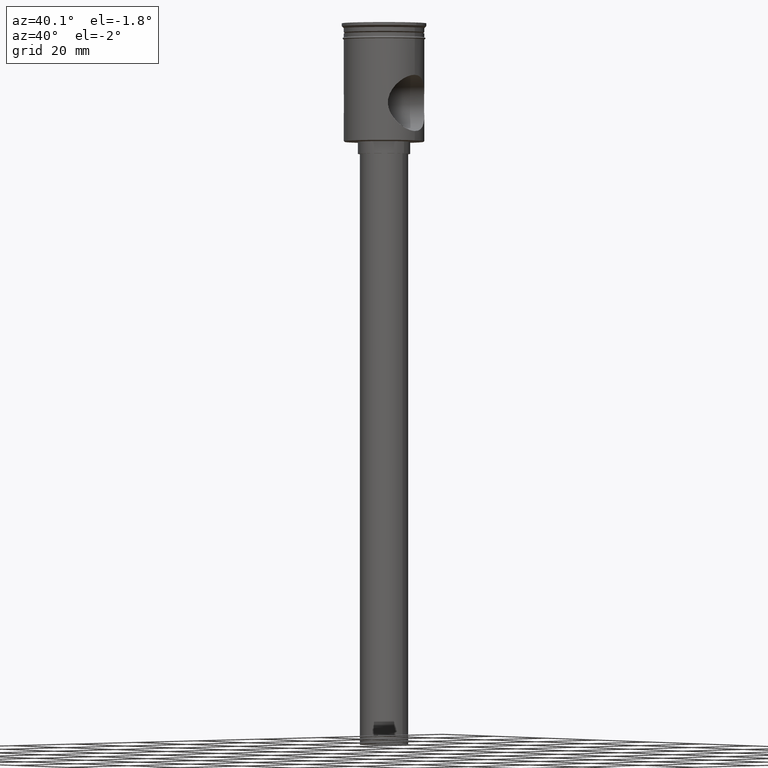
[diagram: clean part render]
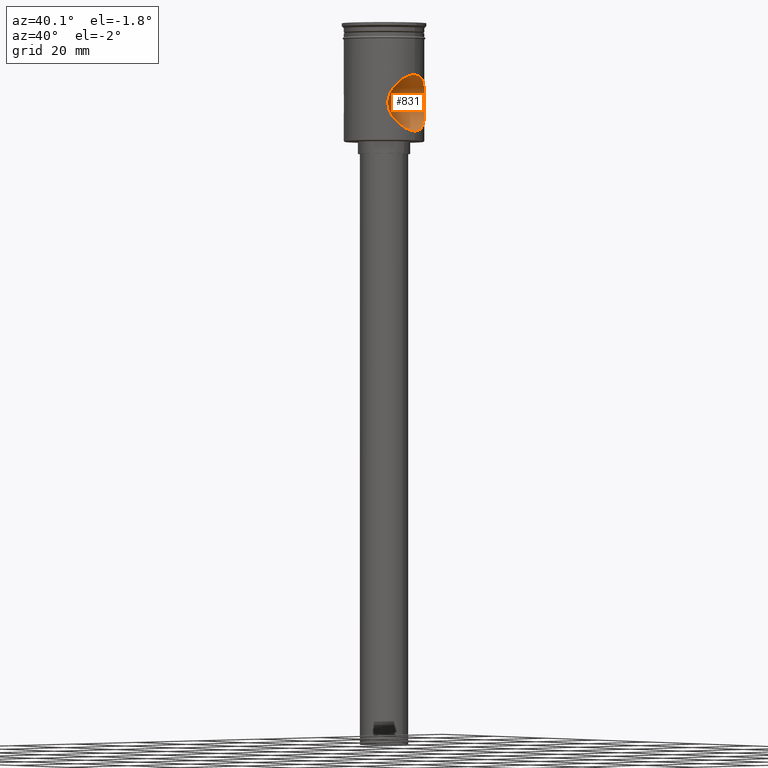
[diagram: same view with one face highlighted and labeled with its STEP entity id]
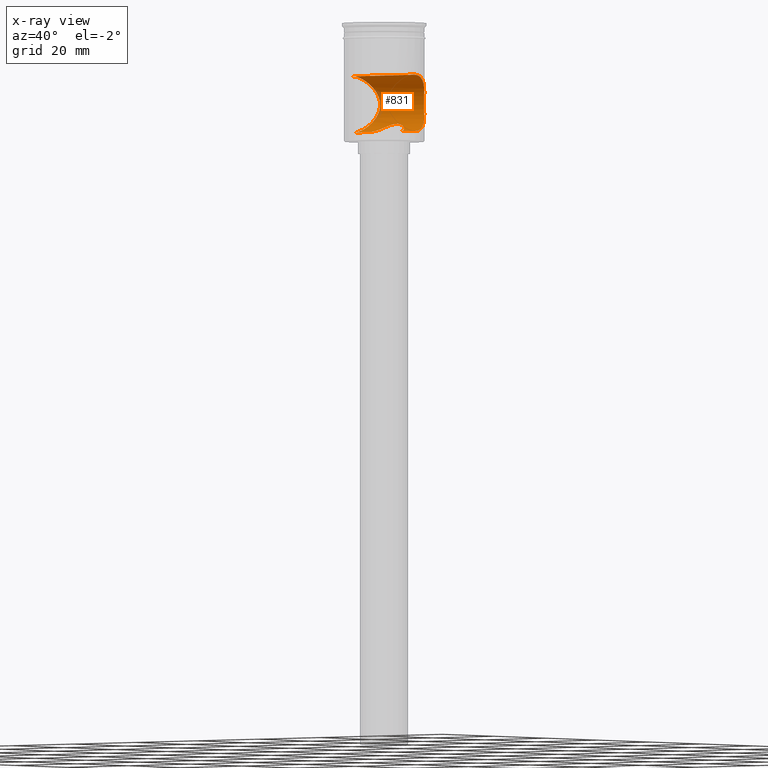
[diagram: x-ray of the same camera — body ghosted, the highlighted face saturated]
A machine part, auxiliary view. The second image highlights one B-rep face of the part: STEP entity #831.
The next image is the same camera in x-ray: the body ghosted, the highlighted face saturated — about 4% of this face is hidden behind the body in this view.
In plain terms, the highlighted cylindrical surface (edge-blend (fillet) strip) has radius 7 mm, axis along (1, -0, -0).
Its self-contained STEP definition (entity closure, byte-faithful):
#1 = CARTESIAN_POINT ( 'NONE',  ( 9.735967975428478027, 2.325336189795355502, -13.38128717480536345 ) ) ;
#23 = CARTESIAN_POINT ( 'NONE',  ( -7.500597748671954612, 6.614342876288898054, -17.69704926583546722 ) ) ;
#29 = CARTESIAN_POINT ( 'NONE',  ( 1.337335298765798930, 4.829642785058293697, -25.06789870844718138 ) ) ;
#37 = EDGE_CURVE ( 'NONE', #698, #774, #915, .T. ) ;
#48 = VERTEX_POINT ( 'NONE', #1465 ) ;
#53 = ORIENTED_EDGE ( 'NONE', *, *, #1256, .T. ) ;
#58 = CARTESIAN_POINT ( 'NONE',  ( 7.201179731105407100, 6.938600208746065867, -20.95536877560809330 ) ) ;
#70 = CARTESIAN_POINT ( 'NONE',  ( 9.493823586986472662, 3.171854784083770085, -26.25704949909892250 ) ) ;
#73 = CARTESIAN_POINT ( 'NONE',  ( -10.50000000000000000, 0.000000000000000000, -27.00000000000000355 ) ) ;
#74 = B_SPLINE_CURVE_WITH_KNOTS ( 'NONE', 3,
 ( #1354, #180, #318, #187, #667, #70, #1045, #660, #793, #191, #1132, #685, #559, #1493, #1124, #432, #309, #441, #58, #1386, #1470, #1239, #891, #351, #327, #1066, #819, #945, #581, #1521, #930, #335, #955, #233, #1527, #1304, #342, #964, #719, #1, #219, #1407, #1418, #588, #1060, #1423 ),
 .UNSPECIFIED., .F., .F.,
 ( 4, 2, 2, 2, 2, 2, 2, 2, 2, 2, 2, 2, 2, 2, 2, 2, 2, 2, 2, 2, 2, 2, 4 ),
 ( 0.000000000000000000, 0.001421073207666945183, 0.002842146415333890366, 0.004263219623000837066, 0.005684292830667782466, 0.007105366038334726998, 0.008526439246001672398, 0.009236975849835149868, 0.009947512453668627339, 0.01065804905750210654, 0.01136858566133558401, 0.01207912226516906322, 0.01278965886900253895, 0.01421073207666949390, 0.01492126868050296790, 0.01563180528433644190, 0.01705287849200338296, 0.01847395169967032749, 0.01918448830350380149, 0.01989502490733727202, 0.02131609811500421309, 0.02202663471883768362, 0.02273717132267115415 ),
 .UNSPECIFIED. ) ;
#92 = CARTESIAN_POINT ( 'NONE',  ( -9.832878540591766026, 1.879722866531852610, -13.24054240779419089 ) ) ;
#107 = CARTESIAN_POINT ( 'NONE',  ( -5.000000000000000888, 0.000000000000000000, -27.00000000000001066 ) ) ;
#136 = CARTESIAN_POINT ( 'NONE',  ( -8.056358060451357161, 5.926078000082595665, -23.73242365119358155 ) ) ;
#147 = CARTESIAN_POINT ( 'NONE',  ( -2.532890282785345448, 4.322635034373780272, -25.51029251272041165 ) ) ;
#156 = CARTESIAN_POINT ( 'NONE',  ( -0.1754869620673724095, 4.999867480858278590, -24.89911473726898095 ) ) ;
#165 = CARTESIAN_POINT ( 'NONE',  ( -1.179760909527910684, 4.861708977790192066, -25.03647217495750610 ) ) ;
#180 = CARTESIAN_POINT ( 'NONE',  ( 9.999999999999994671, 0.4814323775651360160, -27.00000000000000711 ) ) ;
#187 = CARTESIAN_POINT ( 'NONE',  ( 9.834047061028444503, 1.872933838790287631, -26.76115115372198616 ) ) ;
#191 = CARTESIAN_POINT ( 'NONE',  ( 8.500359578522527215, 5.279417043634754947, -24.61763755135371312 ) ) ;
#201 = ORIENTED_EDGE ( 'NONE', *, *, #1226, .F. ) ;
#205 = CARTESIAN_POINT ( 'NONE',  ( -9.736384942666980180, 2.323699784143521185, -13.38067151163704871 ) ) ;
#216 = CARTESIAN_POINT ( 'NONE',  ( -7.381411116935110428, 6.747102913955162151, -21.87877048370861743 ) ) ;
#219 = CARTESIAN_POINT ( 'NONE',  ( 9.832512437962645180, 1.881659858244550509, -13.24107387809922898 ) ) ;
#223 = ORIENTED_EDGE ( 'NONE', *, *, #1263, .T. ) ;
#233 = CARTESIAN_POINT ( 'NONE',  ( 8.857763224790600631, 4.655166966848104160, -14.75332674821394185 ) ) ;
#238 = CARTESIAN_POINT ( 'NONE',  ( -7.141989287018506438, 6.999427809131203659, -20.49012689816927946 ) ) ;
#245 = CARTESIAN_POINT ( 'NONE',  ( -9.826638545464753349, 1.868062541291059642, -26.75021854738501759 ) ) ;
#270 = VECTOR ( 'NONE', #1395, 1000.000000000000000 ) ;
#278 = CARTESIAN_POINT ( 'NONE',  ( 1.650992066523039759, 4.730545921691764022, -25.16233632639476525 ) ) ;
#284 = CARTESIAN_POINT ( 'NONE',  ( 4.965285058292300491, 0.6793982586713438465, -26.97507591100514190 ) ) ;
#290 = CARTESIAN_POINT ( 'NONE',  ( 4.532214772625207111, 2.118082564557161707, -26.67373434947571198 ) ) ;
#296 = LINE ( 'NONE', #1484, #530 ) ;
#309 = CARTESIAN_POINT ( 'NONE',  ( 7.325106434378655607, 6.807865243658028476, -21.64544578927129237 ) ) ;
#310 = VERTEX_POINT ( 'NONE', #895 ) ;
#312 = CARTESIAN_POINT ( 'NONE',  ( -5.000000000000000888, 0.000000000000000000, -27.00000000000001066 ) ) ;
#316 = VECTOR ( 'NONE', #1022, 1000.000000000000000 ) ;
#318 = CARTESIAN_POINT ( 'NONE',  ( 9.965446655919850016, 0.9519641332654187327, -26.95088558220736630 ) ) ;
#327 = CARTESIAN_POINT ( 'NONE',  ( 7.234464554488559962, 6.904114004842417884, -18.82145945963317857 ) ) ;
#335 = CARTESIAN_POINT ( 'NONE',  ( 8.316470757484857756, 5.561257273121390732, -15.72607428983809008 ) ) ;
#339 = CARTESIAN_POINT ( 'NONE',  ( 3.292944377375058629, 3.775732323944060109, -25.90002296354260736 ) ) ;
#341 = CARTESIAN_POINT ( 'NONE',  ( -3.747349970914688022, 3.325110483998860555, -26.16520927218463299 ) ) ;
#342 = CARTESIAN_POINT ( 'NONE',  ( 9.343068346694408888, 3.570972421456893642, -13.97506645596566877 ) ) ;
#351 = CARTESIAN_POINT ( 'NONE',  ( 7.199668910925416832, 6.940164191266630311, -19.05657392165621289 ) ) ;
#356 = CARTESIAN_POINT ( 'NONE',  ( -9.675488818793542833, 2.536388918100093370, -26.52836702033825489 ) ) ;
#379 = CARTESIAN_POINT ( 'NONE',  ( 0.6761335185190037178, 4.965557229327413502, -24.93480376029487644 ) ) ;
#417 = CARTESIAN_POINT ( 'NONE',  ( -9.932287513067288742, 1.185065133237715562, -13.09699146176595974 ) ) ;
#432 = CARTESIAN_POINT ( 'NONE',  ( 7.379165411094851912, 6.749558967525724817, -21.87002777218119931 ) ) ;
#438 = CARTESIAN_POINT ( 'NONE',  ( -9.957864273581446213, 0.9472565907286251141, -13.06030547907275796 ) ) ;
#441 = CARTESIAN_POINT ( 'NONE',  ( 7.236111701560244747, 6.902383710959966834, -21.18811620976742915 ) ) ;
#455 = CARTESIAN_POINT ( 'NONE',  ( -9.991596185262174856, 0.4736682493084680701, -13.01198930438258117 ) ) ;
#456 = VERTEX_POINT ( 'NONE', #903 ) ;
#461 = CARTESIAN_POINT ( 'NONE',  ( -8.503943671969903306, 5.273689396165736731, -24.62422230267287304 ) ) ;
#465 = CARTESIAN_POINT ( 'NONE',  ( -1.809467163200384254, 4.663868933387907312, -25.22066088895259739 ) ) ;
#467 = CARTESIAN_POINT ( 'NONE',  ( -7.569330506494653221, 6.535933251526299337, -17.48356472559870411 ) ) ;
#470 = CARTESIAN_POINT ( 'NONE',  ( -4.725420519943790865, 1.666627172151766034, -26.80593608603389555 ) ) ;
#476 = AXIS2_PLACEMENT_3D ( 'NONE', #1149, #1505, #1259 ) ;
#495 = CARTESIAN_POINT ( 'NONE',  ( -9.999999999999996447, 0.000000000000000000, -27.00000000000000355 ) ) ;
#504 = CARTESIAN_POINT ( 'NONE',  ( -9.999999999999996447, 0.000000000000000000, -27.00000000000000355 ) ) ;
#520 = CARTESIAN_POINT ( 'NONE',  ( -3.059068203738755543, 3.967720825599827528, -25.77110809691168214 ) ) ;
#522 = CARTESIAN_POINT ( 'NONE',  ( -1.657180693842158492, 4.720270986420919357, -25.16948851465703640 ) ) ;
#527 = CARTESIAN_POINT ( 'NONE',  ( 5.000000000000001776, 0.3397238778479513277, -27.00000000000001776 ) ) ;
#530 = VECTOR ( 'NONE', #536, 1000.000000000000000 ) ;
#536 = DIRECTION ( 'NONE',  ( 1.000000000000000000, -0.000000000000000000, -0.000000000000000000 ) ) ;
#538 = CARTESIAN_POINT ( 'NONE',  ( 4.827574874569009467, 1.345421322269139131, -26.87772545422928872 ) ) ;
#542 = LINE ( 'NONE', #73, #316 ) ;
#544 = EDGE_LOOP ( 'NONE', ( #201, #1105, #834, #902, #223, #53 ) ) ;
#552 = CARTESIAN_POINT ( 'NONE',  ( -9.999999999999992895, 0.2368473339933030442, -13.00000000000000355 ) ) ;
#559 = CARTESIAN_POINT ( 'NONE',  ( 7.796463043157196182, 6.266459839169562507, -23.15209899686185224 ) ) ;
#560 = CYLINDRICAL_SURFACE ( 'NONE', #476, 6.999999999999999112 ) ;
#571 = CARTESIAN_POINT ( 'NONE',  ( -9.492393824703034610, 3.176669941205828795, -13.74509325342724253 ) ) ;
#578 = CARTESIAN_POINT ( 'NONE',  ( -4.964638892699618111, 0.6823602827348956845, -26.97461961046873924 ) ) ;
#581 = CARTESIAN_POINT ( 'NONE',  ( 7.801002067758135539, 6.258004569467825462, -16.85560777748649386 ) ) ;
#588 = CARTESIAN_POINT ( 'NONE',  ( 9.991574020215791663, 0.4743472386555617204, -13.01202085301403777 ) ) ;
#595 = LINE ( 'NONE', #1294, #270 ) ;
#598 = CARTESIAN_POINT ( 'NONE',  ( -9.867116120145130509, 1.641278058953928198, -26.80890176429204885 ) ) ;
#599 = EDGE_CURVE ( 'NONE', #310, #677, #1370, .T. ) ;
#607 = CARTESIAN_POINT ( 'NONE',  ( -7.322655419112948927, 6.810500286563438976, -18.36528137380275538 ) ) ;
#614 = CARTESIAN_POINT ( 'NONE',  ( -9.494221684495640190, 3.170672659151728912, -26.25765240908376441 ) ) ;
#622 = CARTESIAN_POINT ( 'NONE',  ( 2.244562664444794908, 4.479484118326247710, -25.38163572696187487 ) ) ;
#625 = CARTESIAN_POINT ( 'NONE',  ( -3.300970264808641197, 3.768631959499709083, -25.90453878422926692 ) ) ;
#631 = CARTESIAN_POINT ( 'NONE',  ( 2.527883546810657744, 4.325402544629332269, -25.50804359344956751 ) ) ;
#635 = CARTESIAN_POINT ( 'NONE',  ( -0.3480649584412727759, 4.990754227678547927, -24.90846136708503167 ) ) ;
#660 = CARTESIAN_POINT ( 'NONE',  ( 9.029024665842507957, 4.317593744654971033, -25.52832831042054806 ) ) ;
#665 = CARTESIAN_POINT ( 'NONE',  ( -8.315544161946238688, 5.562748588078728851, -15.72768175892419862 ) ) ;
#667 = CARTESIAN_POINT ( 'NONE',  ( 9.735585976469911529, 2.326309258653758594, -26.61812786508321693 ) ) ;
#677 = VERTEX_POINT ( 'NONE', #504 ) ;
#685 = CARTESIAN_POINT ( 'NONE',  ( 7.964400624432384390, 6.054727537725132613, -23.54044438658495508 ) ) ;
#693 = CARTESIAN_POINT ( 'NONE',  ( -9.347318963212909892, 3.576349491498996613, -13.96584429441086250 ) ) ;
#698 = VERTEX_POINT ( 'NONE', #1096 ) ;
#699 = CARTESIAN_POINT ( 'NONE',  ( -7.574535355013248150, 6.529908853628296761, -22.53201108648862316 ) ) ;
#716 = CARTESIAN_POINT ( 'NONE',  ( -9.730782946235683184, 2.316105786581691639, -26.60989879506474054 ) ) ;
#719 = CARTESIAN_POINT ( 'NONE',  ( 9.553141715981873006, 2.964211287661889571, -13.65436461758242181 ) ) ;
#724 = CARTESIAN_POINT ( 'NONE',  ( -9.035512705743391493, 4.303590503429356673, -25.53881697926559013 ) ) ;
#750 = CARTESIAN_POINT ( 'NONE',  ( -3.953319486935452431, 3.077855022031981136, -26.29363764657269797 ) ) ;
#754 = CARTESIAN_POINT ( 'NONE',  ( -0.8517833671990766575, 4.929758116149198344, -24.96988441214763910 ) ) ;
#774 = VERTEX_POINT ( 'NONE', #312 ) ;
#781 = CARTESIAN_POINT ( 'NONE',  ( 4.459557234461517083, 2.266908297124829552, -26.62451718428212288 ) ) ;
#783 = CARTESIAN_POINT ( 'NONE',  ( -8.853430568094132980, 4.663155653245508070, -14.76073180007297125 ) ) ;
#786 = EDGE_CURVE ( 'NONE', #677, #774, #542, .T. ) ;
#793 = CARTESIAN_POINT ( 'NONE',  ( 8.856372138511654057, 4.657577678256724418, -25.24421500772974269 ) ) ;
#819 = CARTESIAN_POINT ( 'NONE',  ( 7.495754172928653425, 6.623269820279323206, -17.68917710553390421 ) ) ;
#831 = ADVANCED_FACE ( 'NONE', ( #1031 ), #560, .F. ) ;
#834 = ORIENTED_EDGE ( 'NONE', *, *, #786, .T. ) ;
#837 = CARTESIAN_POINT ( 'NONE',  ( -7.505468983612143319, 6.608824641700789648, -22.31875249157933183 ) ) ;
#844 = CARTESIAN_POINT ( 'NONE',  ( -9.965325511264431668, 0.9525671816038204787, -26.95070955909274346 ) ) ;
#846 = CARTESIAN_POINT ( 'NONE',  ( -4.828419546609890034, 1.341499001965817062, -26.87832208419421320 ) ) ;
#848 = CARTESIAN_POINT ( 'NONE',  ( -2.253263931824065480, 4.475062125113561606, -25.38532386745817249 ) ) ;
#869 = CARTESIAN_POINT ( 'NONE',  ( 0.3395221110590841973, 5.000260666815379729, -24.89871344377069917 ) ) ;
#891 = CARTESIAN_POINT ( 'NONE',  ( 7.153235015771536531, 6.988014041043824953, -19.52714534028610061 ) ) ;
#895 = CARTESIAN_POINT ( 'NONE',  ( -9.999999999999994671, 1.229780025839397734E-15, -13.00000000000000355 ) ) ;
#902 = ORIENTED_EDGE ( 'NONE', *, *, #37, .F. ) ;
#903 = CARTESIAN_POINT ( 'NONE',  ( 9.999999999999994671, 0.000000000000000000, -27.00000000000001066 ) ) ;
#915 = B_SPLINE_CURVE_WITH_KNOTS ( 'NONE', 3,
 ( #1345, #527, #284, #538, #1473, #290, #781, #1467, #1241, #1098, #951, #339, #961, #631, #622, #278, #29, #379, #869, #156, #635, #997, #754, #165, #1117, #522, #465, #848, #147, #520, #625, #341, #750, #1534, #1176, #470, #846, #578, #1416, #107 ),
 .UNSPECIFIED., .F., .F.,
 ( 4, 2, 2, 2, 2, 2, 2, 2, 2, 2, 2, 2, 2, 2, 2, 2, 2, 2, 2, 4 ),
 ( 0.01628445435404882874, 0.01730075665134462454, 0.01831705894864042033, 0.01882521009728831476, 0.01933336124593621266, 0.02034966354323200499, 0.02136596584052779732, 0.02238226813782358965, 0.02339857043511938198, 0.02441487273241517431, 0.02492302388106306874, 0.02543117502971096316, 0.02593932617835886106, 0.02644747732700675896, 0.02746377962430255476, 0.02848008192159835056, 0.02949638421889414636, 0.03051268651618994215, 0.03152898881348573795, 0.03254529111078153375 ),
 .UNSPECIFIED. ) ;
#930 = CARTESIAN_POINT ( 'NONE',  ( 8.053311715077979827, 5.930176009131115755, -16.27420902905398137 ) ) ;
#945 = CARTESIAN_POINT ( 'NONE',  ( 7.720495804876724044, 6.356685689900112735, -17.05985571267803991 ) ) ;
#947 = CARTESIAN_POINT ( 'NONE',  ( -7.802583678074495488, 6.256037095215747357, -23.14831442975813403 ) ) ;
#951 = CARTESIAN_POINT ( 'NONE',  ( 3.741637662025034228, 3.331633962589205300, -26.16170761167131786 ) ) ;
#955 = CARTESIAN_POINT ( 'NONE',  ( 8.498707828545162712, 5.282283036785497821, -15.38527946463393370 ) ) ;
#961 = CARTESIAN_POINT ( 'NONE',  ( 3.050937175451544192, 3.973799787454030064, -25.76685066996338591 ) ) ;
#964 = CARTESIAN_POINT ( 'NONE',  ( 9.485754788391535186, 3.172574074835096791, -13.75608760595409663 ) ) ;
#969 = CARTESIAN_POINT ( 'NONE',  ( -9.351609315107900500, 3.564938189428367377, -26.04074502495870647 ) ) ;
#997 = CARTESIAN_POINT ( 'NONE',  ( -0.6855234035077085730, 4.955687100658117572, -24.94386348048046287 ) ) ;
#1022 = DIRECTION ( 'NONE',  ( 1.000000000000000000, -0.000000000000000000, -0.000000000000000000 ) ) ;
#1025 = CARTESIAN_POINT ( 'NONE',  ( -8.050554706296177088, 5.933943087171876130, -16.28011583648020988 ) ) ;
#1031 = FACE_OUTER_BOUND ( 'NONE', #544, .T. ) ;
#1045 = CARTESIAN_POINT ( 'NONE',  ( 9.349377247001186220, 3.571280898155820172, -26.03738208151085587 ) ) ;
#1060 = CARTESIAN_POINT ( 'NONE',  ( 9.999999999999996447, 0.2371603752032602208, -13.00000000000000711 ) ) ;
#1066 = CARTESIAN_POINT ( 'NONE',  ( 7.368839572955796058, 6.761454996973014886, -18.12764364703029329 ) ) ;
#1084 = CARTESIAN_POINT ( 'NONE',  ( -7.191763660842745765, 6.949507115151161152, -20.96152780032075569 ) ) ;
#1089 = CARTESIAN_POINT ( 'NONE',  ( -7.326263957022342233, 6.806624336356017935, -21.65073055260620905 ) ) ;
#1096 = CARTESIAN_POINT ( 'NONE',  ( 5.000000000000000888, 5.559607670071811640E-22, -27.00000000000000355 ) ) ;
#1098 = CARTESIAN_POINT ( 'NONE',  ( 3.947161404201652513, 3.085829967940950436, -26.28975409226824667 ) ) ;
#1105 = ORIENTED_EDGE ( 'NONE', *, *, #599, .T. ) ;
#1117 = CARTESIAN_POINT ( 'NONE',  ( -1.342486960747957481, 4.819225539182826701, -25.07736495545731970 ) ) ;
#1124 = CARTESIAN_POINT ( 'NONE',  ( 7.503273641266415162, 6.611317046147628496, -22.31171733569519944 ) ) ;
#1132 = CARTESIAN_POINT ( 'NONE',  ( 8.315624236750037923, 5.562535070965512141, -24.27231501587448292 ) ) ;
#1149 = CARTESIAN_POINT ( 'NONE',  ( -10.50000000000000000, 0.000000000000000000, -20.00000000000000355 ) ) ;
#1167 = CARTESIAN_POINT ( 'NONE',  ( -9.028965068475375944, 4.317457269925931485, -14.47181101200376574 ) ) ;
#1174 = CARTESIAN_POINT ( 'NONE',  ( -8.860185483737918588, 4.650373212660217526, -25.25064384002004658 ) ) ;
#1176 = CARTESIAN_POINT ( 'NONE',  ( -4.467666997400166373, 2.268743445522607871, -26.62957127697793780 ) ) ;
#1195 = CARTESIAN_POINT ( 'NONE',  ( -7.189382404875349408, 6.951946978929631094, -19.05590796920064633 ) ) ;
#1205 = CARTESIAN_POINT ( 'NONE',  ( -7.969012120586809189, 6.042611853496009822, -23.54072391938827735 ) ) ;
#1226 = EDGE_CURVE ( 'NONE', #310, #48, #296, .T. ) ;
#1239 = CARTESIAN_POINT ( 'NONE',  ( 7.141373392009660925, 7.000056148497767694, -19.76373034873126144 ) ) ;
#1241 = CARTESIAN_POINT ( 'NONE',  ( 4.218075708378919764, 2.689506414539494017, -26.46431694219991826 ) ) ;
#1254 = CARTESIAN_POINT ( 'NONE',  ( -8.497179343882921287, 5.284524261307590010, -15.38819392766633243 ) ) ;
#1256 = EDGE_CURVE ( 'NONE', #456, #48, #74, .T. ) ;
#1259 = DIRECTION ( 'NONE',  ( 0.000000000000000000, 0.000000000000000000, -1.000000000000000000 ) ) ;
#1263 = EDGE_CURVE ( 'NONE', #698, #456, #595, .T. ) ;
#1282 = CARTESIAN_POINT ( 'NONE',  ( -9.999999999999994671, 1.229780025839397734E-15, -13.00000000000000355 ) ) ;
#1291 = CARTESIAN_POINT ( 'NONE',  ( -7.140877080678154520, 7.000562488098499792, -19.52635574343557323 ) ) ;
#1294 = CARTESIAN_POINT ( 'NONE',  ( -10.50000000000000000, 0.000000000000000000, -27.00000000000000355 ) ) ;
#1304 = CARTESIAN_POINT ( 'NONE',  ( 9.267396788860448709, 3.762388530127553476, -14.09286872329777474 ) ) ;
#1313 = CARTESIAN_POINT ( 'NONE',  ( -7.796802139286405087, 6.263237125868982069, -16.86600156342442602 ) ) ;
#1318 = CARTESIAN_POINT ( 'NONE',  ( -7.723089038241832682, 6.353518016691833914, -22.94679462982522722 ) ) ;
#1345 = CARTESIAN_POINT ( 'NONE',  ( 5.000000000000000888, 5.559607670071811640E-22, -27.00000000000000355 ) ) ;
#1354 = CARTESIAN_POINT ( 'NONE',  ( 9.999999999999994671, 0.000000000000000000, -27.00000000000001066 ) ) ;
#1369 = CARTESIAN_POINT ( 'NONE',  ( -7.963207023572478782, 6.050255927956311730, -16.47232531239752262 ) ) ;
#1370 = B_SPLINE_CURVE_WITH_KNOTS ( 'NONE', 3,
 ( #1282, #552, #455, #438, #417, #92, #205, #571, #693, #1167, #783, #1254, #665, #1025, #1369, #1313, #1403, #467, #23, #1427, #607, #1195, #1291, #238, #1084, #1089, #216, #837, #699, #1318, #947, #1205, #136, #1411, #461, #1174, #724, #969, #614, #356, #716, #245, #598, #844, #1420, #495 ),
 .UNSPECIFIED., .F., .F.,
 ( 4, 2, 2, 2, 2, 2, 2, 2, 2, 2, 2, 2, 2, 2, 2, 2, 2, 2, 2, 2, 2, 2, 4 ),
 ( 0.02273717132267112292, 0.02344677004960169994, 0.02415636877653227696, 0.02557556623039343099, 0.02699476368425458156, 0.02841396113811573559, 0.02983315859197688963, 0.03054275731890747012, 0.03125235604583804366, 0.03196195477276862762, 0.03267155349969920464, 0.03409075095356035867, 0.03550994840742151271, 0.03621954713435208278, 0.03692914586128265980, 0.03763874458821323682, 0.03834834331514381384, 0.03976754076900496787, 0.04118673822286612884, 0.04260593567672728288, 0.04331553440365785990, 0.04402513313058842997, 0.04544433058444957707 ),
 .UNSPECIFIED. ) ;
#1386 = CARTESIAN_POINT ( 'NONE',  ( 7.153700441637879770, 6.987541224765998926, -20.48080140017840733 ) ) ;
#1395 = DIRECTION ( 'NONE',  ( 1.000000000000000000, -0.000000000000000000, -0.000000000000000000 ) ) ;
#1403 = CARTESIAN_POINT ( 'NONE',  ( -7.717429328536875133, 6.360383034377457001, -17.06803860621227287 ) ) ;
#1407 = CARTESIAN_POINT ( 'NONE',  ( 9.932071413309429886, 1.186883990593142979, -13.09730212679606964 ) ) ;
#1411 = CARTESIAN_POINT ( 'NONE',  ( -8.322069302564289117, 5.553051878775062455, -24.28499264081531095 ) ) ;
#1416 = CARTESIAN_POINT ( 'NONE',  ( -5.000000000000000888, 0.3443248772558981097, -27.00000000000001066 ) ) ;
#1418 = CARTESIAN_POINT ( 'NONE',  ( 9.957729828106900882, 0.9487746701410815220, -13.06049825370512707 ) ) ;
#1420 = CARTESIAN_POINT ( 'NONE',  ( -9.999999999999998224, 0.4807969081117817733, -27.00000000000001066 ) ) ;
#1423 = CARTESIAN_POINT ( 'NONE',  ( 9.999999999999994671, -5.133226810943367768E-18, -13.00000000000000355 ) ) ;
#1427 = CARTESIAN_POINT ( 'NONE',  ( -7.377383315084117932, 6.751497144694277530, -18.13709901651008494 ) ) ;
#1465 = CARTESIAN_POINT ( 'NONE',  ( 9.999999999999994671, -5.133226810943367768E-18, -13.00000000000000355 ) ) ;
#1467 = CARTESIAN_POINT ( 'NONE',  ( 4.302583893006863391, 2.552311853721903834, -26.51987771003208039 ) ) ;
#1470 = CARTESIAN_POINT ( 'NONE',  ( 7.141483849871202771, 6.999943458932625262, -20.23958506209359243 ) ) ;
#1473 = CARTESIAN_POINT ( 'NONE',  ( 4.726950443745964847, 1.662804102803707051, -26.80698892215279017 ) ) ;
#1484 = CARTESIAN_POINT ( 'NONE',  ( -10.50000000000000000, 8.572527594031471218E-16, -13.00000000000000533 ) ) ;
#1493 = CARTESIAN_POINT ( 'NONE',  ( 7.573222039985391341, 6.531435267832768510, -22.52812481744788897 ) ) ;
#1505 = DIRECTION ( 'NONE',  ( 1.000000000000000000, -0.000000000000000000, -0.000000000000000000 ) ) ;
#1521 = CARTESIAN_POINT ( 'NONE',  ( 7.967226261725709691, 6.044961550507583325, -16.46329765270407108 ) ) ;
#1527 = CARTESIAN_POINT ( 'NONE',  ( 9.029975738911995009, 4.315133941133939999, -14.47019995321800323 ) ) ;
#1534 = CARTESIAN_POINT ( 'NONE',  ( -4.312672081940169377, 2.550056080968593708, -26.52535672181373272 ) ) ;